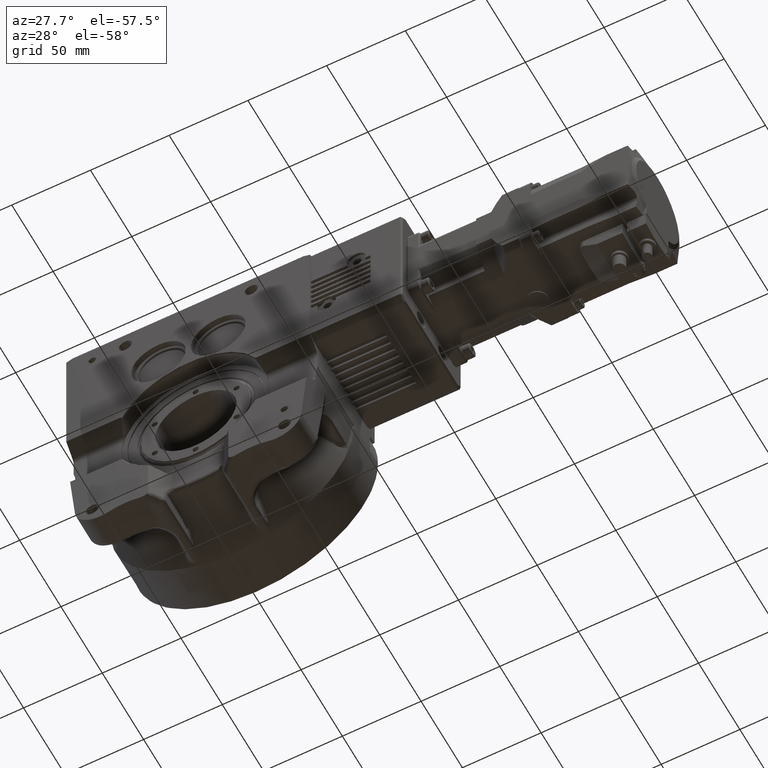
[diagram: clean part render]
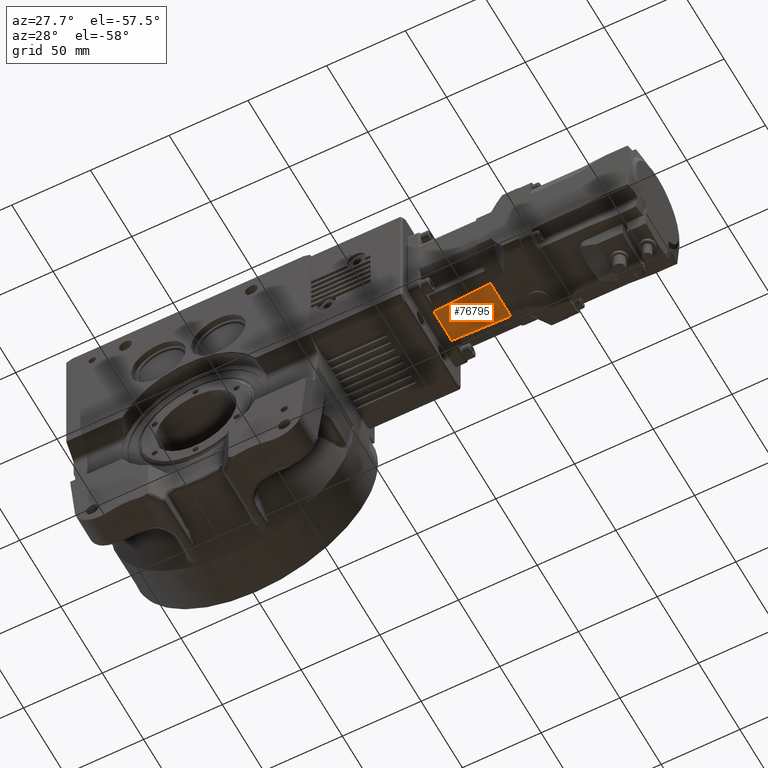
[diagram: same view with one face highlighted and labeled with its STEP entity id]
A machine part, auxiliary view. The second image highlights one B-rep face of the part: STEP entity #76795.
In plain terms, the highlighted planar face has unit normal (0.0175, 0, -0.9998).
Its self-contained STEP definition (entity closure, byte-faithful):
#6738 = CARTESIAN_POINT ( 'NONE',  ( 10.83898597243763540, 29.87723506545201602, -7.033198389856560873 ) ) ;
#6924 = VERTEX_POINT ( 'NONE', #6738 ) ;
#7764 = EDGE_CURVE ( 'NONE', #72282, #29802, #49275, .T. ) ;
#8200 = LINE ( 'NONE', #46376, #51382 ) ;
#9969 = DIRECTION ( 'NONE',  ( 0.03983340169128202907, -0.01743855507492381857, -0.9990541511382653450 ) ) ;
#11257 = VECTOR ( 'NONE', #9969, 1000.000000000000114 ) ;
#11659 = VERTEX_POINT ( 'NONE', #46808 ) ;
#12442 = DIRECTION ( 'NONE',  ( 0.03983340169128211927, 0.01743855507492381857, 0.9990541511382653450 ) ) ;
#29802 = VERTEX_POINT ( 'NONE', #55324 ) ;
#33874 = ORIENTED_EDGE ( 'NONE', *, *, #71335, .T. ) ;
#39385 = DIRECTION ( 'NONE',  ( 1.000000000000000000, -0.000000000000000000, 0.000000000000000000 ) ) ;
#41382 = VECTOR ( 'NONE', #73930, 1000.000000000000000 ) ;
#42863 = FACE_OUTER_BOUND ( 'NONE', #50235, .T. ) ;
#43238 = CARTESIAN_POINT ( 'NONE',  ( -12.31289352399635817, 29.23197714315842077, -44.00000000000000000 ) ) ;
#44472 = LINE ( 'NONE', #43238, #72556 ) ;
#46195 = EDGE_CURVE ( 'NONE', #6924, #29802, #77375, .T. ) ;
#46376 = CARTESIAN_POINT ( 'NONE',  ( -30.00000000000000000, 29.87723506545201602, -7.033198389856559096 ) ) ;
#46808 = CARTESIAN_POINT ( 'NONE',  ( -10.83898597243763540, 29.87723506545201602, -7.033198389856557320 ) ) ;
#49275 = LINE ( 'NONE', #73524, #41382 ) ;
#50235 = EDGE_LOOP ( 'NONE', ( #78600, #33874, #67162, #55227 ) ) ;
#51382 = VECTOR ( 'NONE', #39385, 1000.000000000000000 ) ;
#53533 = CARTESIAN_POINT ( 'NONE',  ( 10.83898597243763362, 29.87723506545201602, -7.033198389856562649 ) ) ;
#55227 = ORIENTED_EDGE ( 'NONE', *, *, #7764, .F. ) ;
#55324 = CARTESIAN_POINT ( 'NONE',  ( 12.31289352399635284, 29.23197714315842077, -44.00000000000000000 ) ) ;
#55619 = DIRECTION ( 'NONE',  ( 0.000000000000000000, 0.01745240643728354635, 0.9998476951563911586 ) ) ;
#58518 = AXIS2_PLACEMENT_3D ( 'NONE', #74109, #67942, #55619 ) ;
#67162 = ORIENTED_EDGE ( 'NONE', *, *, #46195, .T. ) ;
#67942 = DIRECTION ( 'NONE',  ( 0.000000000000000000, 0.9998476951563912696, -0.01745240643728354982 ) ) ;
#70847 = CARTESIAN_POINT ( 'NONE',  ( -12.31289352399635817, 29.23197714315842077, -44.00000000000000000 ) ) ;
#71335 = EDGE_CURVE ( 'NONE', #11659, #6924, #8200, .T. ) ;
#72282 = VERTEX_POINT ( 'NONE', #70847 ) ;
#72510 = EDGE_CURVE ( 'NONE', #72282, #11659, #44472, .T. ) ;
#72556 = VECTOR ( 'NONE', #12442, 1000.000000000000114 ) ;
#73524 = CARTESIAN_POINT ( 'NONE',  ( 0.000000000000000000, 29.23197714315842077, -44.00000000000000000 ) ) ;
#73930 = DIRECTION ( 'NONE',  ( 1.000000000000000000, 0.000000000000000000, -0.000000000000000000 ) ) ;
#74109 = CARTESIAN_POINT ( 'NONE',  ( -30.00000000000000000, 30.00000000000000000, 0.000000000000000000 ) ) ;
#76795 = ADVANCED_FACE ( 'NONE', ( #42863 ), #80291, .T. ) ;
#77375 = LINE ( 'NONE', #53533, #11257 ) ;
#78600 = ORIENTED_EDGE ( 'NONE', *, *, #72510, .T. ) ;
#80291 = PLANE ( 'NONE',  #58518 ) ;